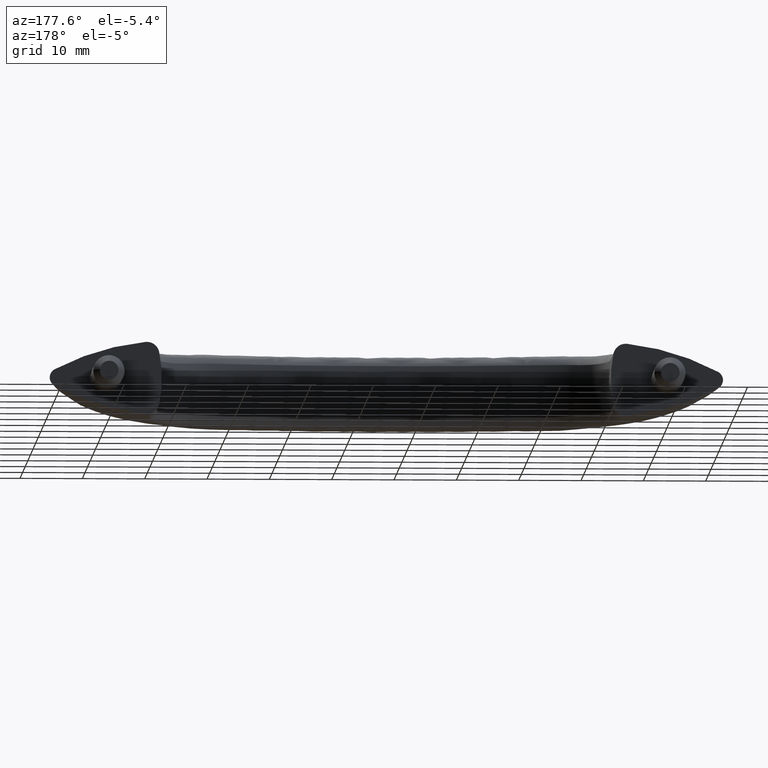
[diagram: clean part render]
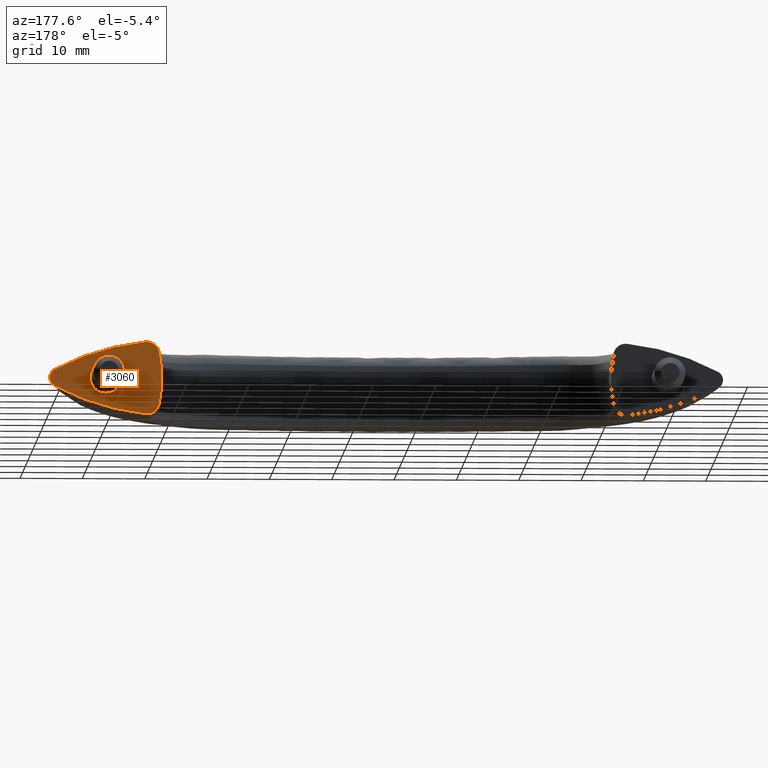
[diagram: same view with one face highlighted and labeled with its STEP entity id]
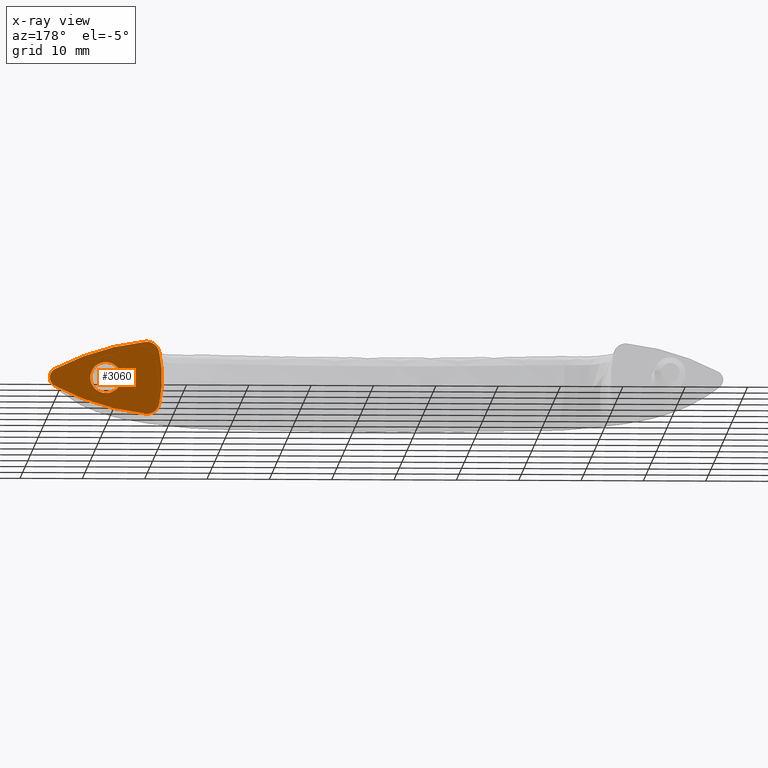
[diagram: x-ray of the same camera — body ghosted, the highlighted face saturated]
A machine part, auxiliary view. The second image highlights one B-rep face of the part: STEP entity #3060.
The next image is the same camera in x-ray: the body ghosted, the highlighted face saturated — about 0% of this face is hidden behind the body in this view.
In plain terms, the highlighted face is a freeform B-spline surface patch.
Its self-contained STEP definition (entity closure, byte-faithful):
#658=CARTESIAN_POINT('',(87.507706665698862,0.0,0.196147739722082));
#659=VERTEX_POINT('',#658);
#665=CARTESIAN_POINT('',(90.0,0.0,2.500000000000000));
#666=VERTEX_POINT('',#665);
#667=CARTESIAN_POINT('',(90.0,0.0,2.500000000000000));
#668=CARTESIAN_POINT('',(87.689023771603175,0.0,2.500000000000000));
#669=CARTESIAN_POINT('',(87.507706665698862,0.0,0.196147739722082));
#677=(BOUNDED_CURVE()B_SPLINE_CURVE(2,(#667,#668,#669),.UNSPECIFIED.,.F.,.U.)B_SPLINE_CURVE_WITH_KNOTS((3,3),(0.0,0.236331300577402),.UNSPECIFIED.)CURVE()GEOMETRIC_REPRESENTATION_ITEM()RATIONAL_B_SPLINE_CURVE((1.0,0.723120658670061,0.969723356056273))REPRESENTATION_ITEM(''));
#678=EDGE_CURVE('',#666,#659,#677,.T.);
#680=CARTESIAN_POINT('',(92.492293334301138,0.0,-0.196147739722082));
#681=VERTEX_POINT('',#680);
#682=CARTESIAN_POINT('',(92.492293334301138,0.0,-0.196147739722082));
#683=CARTESIAN_POINT('',(92.500000000000014,0.0,-0.098225267923511));
#684=CARTESIAN_POINT('',(92.500000000000000,0.0,0.0));
#685=CARTESIAN_POINT('',(92.500000000000000,0.0,2.500000000000000));
#686=CARTESIAN_POINT('',(90.0,0.0,2.500000000000000));
#694=(BOUNDED_CURVE()B_SPLINE_CURVE(2,(#682,#683,#684,#685,#686),.UNSPECIFIED.,.F.,.U.)B_SPLINE_CURVE_WITH_KNOTS((3,2,3),(0.736331300577402,0.750000000000000,1.0),.UNSPECIFIED.)CURVE()GEOMETRIC_REPRESENTATION_ITEM()RATIONAL_B_SPLINE_CURVE((0.969723356056273,0.983986122516487,1.0,0.707106781186548,1.0))REPRESENTATION_ITEM(''));
#695=EDGE_CURVE('',#681,#666,#694,.T.);
#771=CARTESIAN_POINT('',(90.0,0.0,-2.500000000000000));
#772=VERTEX_POINT('',#771);
#773=CARTESIAN_POINT('',(90.0,0.0,-2.500000000000000));
#774=CARTESIAN_POINT('',(92.310976228396825,0.0,-2.500000000000000));
#775=CARTESIAN_POINT('',(92.492293334301138,0.0,-0.196147739722082));
#783=(BOUNDED_CURVE()B_SPLINE_CURVE(2,(#773,#774,#775),.UNSPECIFIED.,.F.,.U.)B_SPLINE_CURVE_WITH_KNOTS((3,3),(0.500000000000000,0.736331300577401),.UNSPECIFIED.)CURVE()GEOMETRIC_REPRESENTATION_ITEM()RATIONAL_B_SPLINE_CURVE((1.0,0.723120658670061,0.969723356056272))REPRESENTATION_ITEM(''));
#784=EDGE_CURVE('',#772,#681,#783,.T.);
#786=CARTESIAN_POINT('',(87.507706665698862,0.0,0.196147739722082));
#787=CARTESIAN_POINT('',(87.500000000000000,0.0,0.098225267923511));
#788=CARTESIAN_POINT('',(87.500000000000000,0.0,0.0));
#789=CARTESIAN_POINT('',(87.500000000000000,0.0,-2.500000000000000));
#790=CARTESIAN_POINT('',(90.0,0.0,-2.500000000000000));
#798=(BOUNDED_CURVE()B_SPLINE_CURVE(2,(#786,#787,#788,#789,#790),.UNSPECIFIED.,.F.,.U.)B_SPLINE_CURVE_WITH_KNOTS((3,2,3),(0.236331300577402,0.250000000000000,0.500000000000000),.UNSPECIFIED.)CURVE()GEOMETRIC_REPRESENTATION_ITEM()RATIONAL_B_SPLINE_CURVE((0.969723356056273,0.983986122516487,1.0,0.707106781186548,1.0))REPRESENTATION_ITEM(''));
#799=EDGE_CURVE('',#659,#772,#798,.T.);
#1731=CARTESIAN_POINT('',(98.856059668641507,1.110223E-016,-0.641599657557264));
#1732=VERTEX_POINT('',#1731);
#1733=CARTESIAN_POINT('',(98.203728905470598,0.0,1.324673508835938));
#1734=VERTEX_POINT('',#1733);
#1735=CARTESIAN_POINT('',(98.856059668641507,1.110223E-016,-0.641599657557264));
#1736=CARTESIAN_POINT('',(99.000058529482047,9.812377E-017,-0.340230607854145));
#1737=CARTESIAN_POINT('',(98.999907919575435,8.081350E-017,0.000043417270541));
#1738=CARTESIAN_POINT('',(98.999723407038005,5.960665E-017,0.416913895421642));
#1739=CARTESIAN_POINT('',(98.785568015930721,3.789003E-017,0.772808339605696));
#1740=CARTESIAN_POINT('',(98.571055654836329,1.613721E-017,1.129296014875285));
#1741=CARTESIAN_POINT('',(98.203728905470598,0.0,1.324673508835938));
#1742=B_SPLINE_CURVE_WITH_KNOTS('',2,(#1735,#1736,#1737,#1738,#1739,#1740,#1741),.UNSPECIFIED.,.F.,.U.,(3,2,2,3),(0.295198498728457,0.500000000000000,0.750000000000000,1.0),.UNSPECIFIED.);
#1743=EDGE_CURVE('',#1732,#1734,#1742,.T.);
#1745=CARTESIAN_POINT('',(83.612808550374297,0.0,5.781498633923799));
#1746=VERTEX_POINT('',#1745);
#1747=CARTESIAN_POINT('',(98.203728905470598,0.0,1.324673508835938));
#1748=CARTESIAN_POINT('',(94.803538268852677,0.0,3.130932503362864));
#1749=CARTESIAN_POINT('',(91.122721632250432,0.0,4.255169681240180));
#1750=CARTESIAN_POINT('',(87.441194348916653,0.0,5.379623912982100));
#1751=CARTESIAN_POINT('',(83.612808550374297,0.0,5.781498633923799));
#1752=B_SPLINE_CURVE_WITH_KNOTS('',2,(#1747,#1748,#1749,#1750,#1751),.UNSPECIFIED.,.F.,.U.,(3,2,3),(0.0,0.500000000000000,1.0),.UNSPECIFIED.);
#1753=EDGE_CURVE('',#1734,#1746,#1752,.T.);
#1755=CARTESIAN_POINT('',(81.448942358728431,0.0,4.213804113586232));
#1756=VERTEX_POINT('',#1755);
#1757=CARTESIAN_POINT('',(83.612808550374282,0.0,5.781498633923797));
#1758=CARTESIAN_POINT('',(83.244163975389995,0.0,5.820049422913968));
#1759=CARTESIAN_POINT('',(82.887566461975396,0.0,5.724584848192017));
#1760=CARTESIAN_POINT('',(82.529519973094963,0.0,5.628732368839702));
#1761=CARTESIAN_POINT('',(82.230656868436299,0.0,5.412038768856838));
#1762=CARTESIAN_POINT('',(81.930579382608883,0.0,5.194464669999725));
#1763=CARTESIAN_POINT('',(81.728991416043428,0.0,4.885211435030140));
#1764=CARTESIAN_POINT('',(81.527007870277416,0.0,4.575351347630108));
#1765=CARTESIAN_POINT('',(81.448942358728402,0.0,4.213804113586228));
#1766=B_SPLINE_CURVE_WITH_KNOTS('',2,(#1757,#1758,#1759,#1760,#1761,#1762,#1763,#1764,#1765),.UNSPECIFIED.,.F.,.U.,(3,2,2,2,3),(0.0,0.250000000000000,0.500000000000000,0.750000000000000,1.0),.UNSPECIFIED.);
#1767=EDGE_CURVE('',#1746,#1756,#1766,.T.);
#2927=CARTESIAN_POINT('',(98.203728905470598,0.0,-1.324673508835996));
#2928=VERTEX_POINT('',#2927);
#2929=CARTESIAN_POINT('',(98.203728905470598,0.0,-1.324673508835996));
#2930=CARTESIAN_POINT('',(98.571734396449045,4.652048E-017,-1.128883208106998));
#2931=CARTESIAN_POINT('',(98.785504537906178,9.414767E-017,-0.772737506701687));
#2932=CARTESIAN_POINT('',(98.824292460038322,1.027895E-016,-0.708115985474983));
#2933=CARTESIAN_POINT('',(98.856059668641507,1.110223E-016,-0.641599657557264));
#2934=B_SPLINE_CURVE_WITH_KNOTS('',2,(#2929,#2930,#2931,#2932,#2933),.UNSPECIFIED.,.F.,.U.,(3,2,3),(0.0,0.250000000000000,0.295198498728457),.UNSPECIFIED.);
#2935=EDGE_CURVE('',#2928,#1732,#2934,.T.);
#2981=CARTESIAN_POINT('',(81.448942358728388,0.0,-4.213804113586256));
#2982=VERTEX_POINT('',#2981);
#2983=CARTESIAN_POINT('',(81.448942358728402,0.0,4.213804113586236));
#2984=CARTESIAN_POINT('',(80.999920122467174,0.0,2.130067408700410));
#2985=CARTESIAN_POINT('',(80.999999999999972,0.0,-1.734723E-015));
#2986=CARTESIAN_POINT('',(81.000079905338637,0.0,-2.130808898466292));
#2987=CARTESIAN_POINT('',(81.448942358728402,0.0,-4.213804113586259));
#2988=B_SPLINE_CURVE_WITH_KNOTS('',2,(#2983,#2984,#2985,#2986,#2987),.UNSPECIFIED.,.F.,.U.,(3,2,3),(0.0,0.500000000000000,1.0),.UNSPECIFIED.);
#2989=EDGE_CURVE('',#1756,#2982,#2988,.T.);
#2991=CARTESIAN_POINT('',(83.612808550374297,0.0,-5.781498633923920));
#2992=VERTEX_POINT('',#2991);
#2993=CARTESIAN_POINT('',(81.448942358728402,0.0,-4.213804113586258));
#2994=CARTESIAN_POINT('',(81.527171566270724,0.0,-4.576109477996476));
#2995=CARTESIAN_POINT('',(81.728991416043399,0.0,-4.885211435030188));
#2996=CARTESIAN_POINT('',(81.931631327644084,0.0,-5.195569377122886));
#2997=CARTESIAN_POINT('',(82.230656868436270,0.0,-5.412038768856922));
#2998=CARTESIAN_POINT('',(82.530897450425087,0.0,-5.629387748428393));
#2999=CARTESIAN_POINT('',(82.887566461975382,0.0,-5.724584848192123));
#3000=CARTESIAN_POINT('',(83.244935370679329,0.0,-5.819968754706649));
#3001=CARTESIAN_POINT('',(83.612808550374297,0.0,-5.781498633923918));
#3002=B_SPLINE_CURVE_WITH_KNOTS('',2,(#2993,#2994,#2995,#2996,#2997,#2998,#2999,#3000,#3001),.UNSPECIFIED.,.F.,.U.,(3,2,2,2,3),(0.0,0.250000000000000,0.500000000000000,0.750000000000000,1.0),.UNSPECIFIED.);
#3003=EDGE_CURVE('',#2982,#2992,#3002,.T.);
#3005=CARTESIAN_POINT('',(83.612808550374297,0.0,-5.781498633923920));
#3006=CARTESIAN_POINT('',(87.441947157185012,0.0,-5.379544888913116));
#3007=CARTESIAN_POINT('',(91.122721632250432,0.0,-4.255169681240276));
#3008=CARTESIAN_POINT('',(94.804206746050752,0.0,-3.130577393009918));
#3009=CARTESIAN_POINT('',(98.203728905470598,0.0,-1.324673508835996));
#3010=B_SPLINE_CURVE_WITH_KNOTS('',2,(#3005,#3006,#3007,#3008,#3009),.UNSPECIFIED.,.F.,.U.,(3,2,3),(0.0,0.500000000000000,1.0),.UNSPECIFIED.);
#3011=EDGE_CURVE('',#2992,#2928,#3010,.T.);
#3040=CARTESIAN_POINT('',(90.628665242338641,0.0,-12.809357189570470));
#3041=CARTESIAN_POINT('',(100.736043579771900,0.0,0.357771722873266));
#3042=CARTESIAN_POINT('',(75.804060557551253,0.0,-1.429663920947098));
#3043=CARTESIAN_POINT('',(85.911438894984528,0.0,11.737464991496640));
#3044=B_SPLINE_SURFACE_WITH_KNOTS('',1,1,((#3040,#3042),(#3041,#3043)),.UNSPECIFIED.,.F.,.F.,.U.,(2,2),(2,2),(0.0,16.599168071109091),(0.0,18.688668303230511),.UNSPECIFIED.);
#3045=ORIENTED_EDGE('',*,*,#3011,.F.);
#3046=ORIENTED_EDGE('',*,*,#3003,.F.);
#3047=ORIENTED_EDGE('',*,*,#2989,.F.);
#3048=ORIENTED_EDGE('',*,*,#1767,.F.);
#3049=ORIENTED_EDGE('',*,*,#1753,.F.);
#3050=ORIENTED_EDGE('',*,*,#1743,.F.);
#3051=ORIENTED_EDGE('',*,*,#2935,.F.);
#3052=EDGE_LOOP('',(#3045,#3046,#3047,#3048,#3049,#3050,#3051));
#3053=FACE_OUTER_BOUND('',#3052,.T.);
#3054=ORIENTED_EDGE('',*,*,#784,.T.);
#3055=ORIENTED_EDGE('',*,*,#695,.T.);
#3056=ORIENTED_EDGE('',*,*,#678,.T.);
#3057=ORIENTED_EDGE('',*,*,#799,.T.);
#3058=EDGE_LOOP('',(#3054,#3055,#3056,#3057));
#3059=FACE_BOUND('',#3058,.T.);
#3060=ADVANCED_FACE('',(#3053,#3059),#3044,.F.);